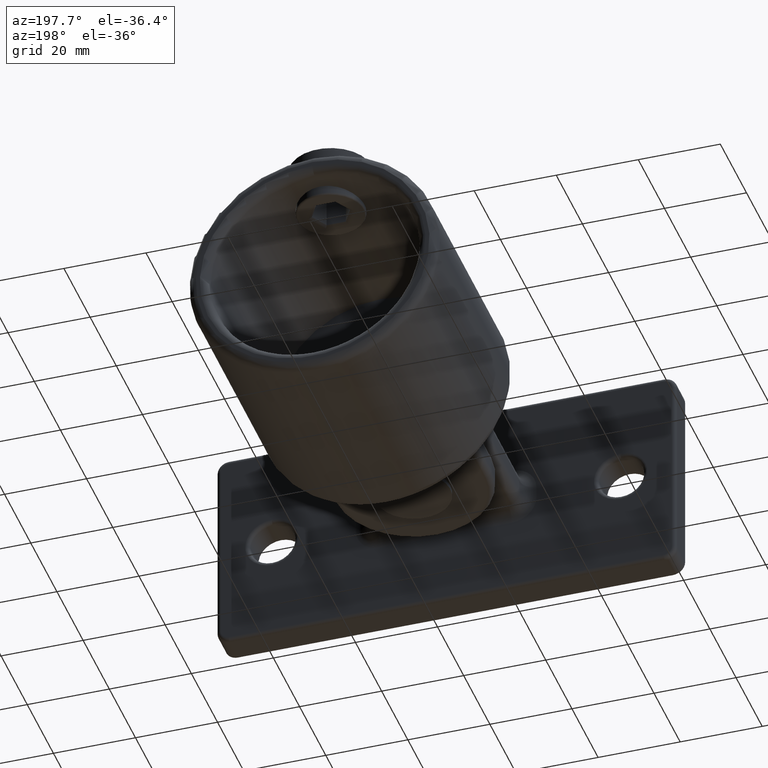
[diagram: clean part render]
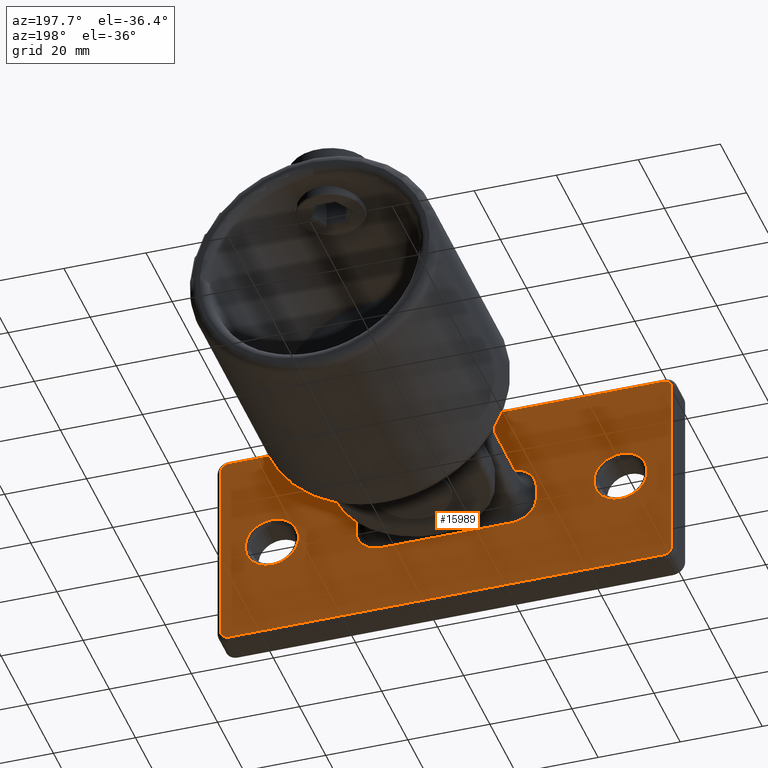
[diagram: same view with one face highlighted and labeled with its STEP entity id]
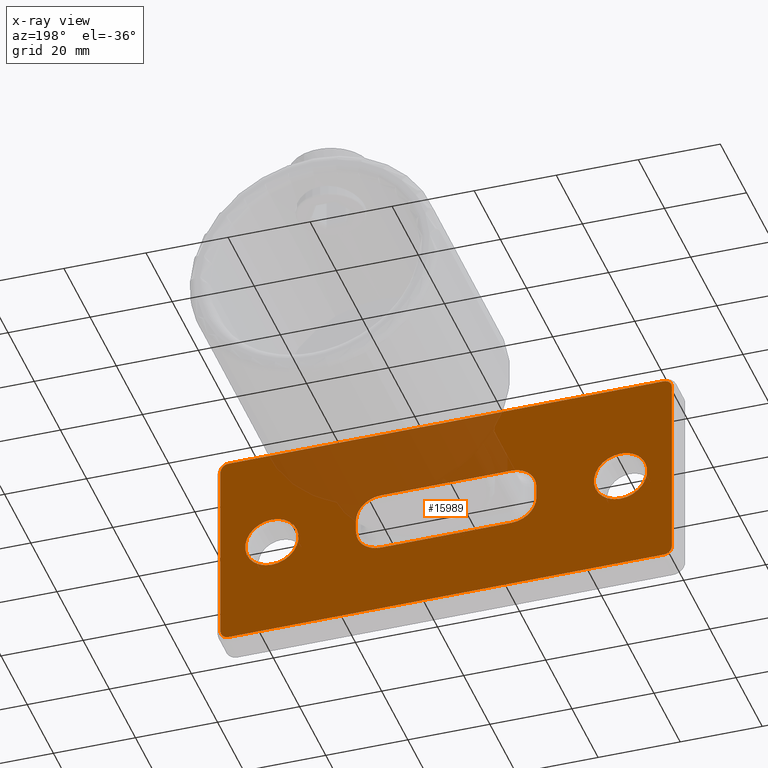
[diagram: x-ray of the same camera — body ghosted, the highlighted face saturated]
A machine part, auxiliary view. The second image highlights one B-rep face of the part: STEP entity #15989.
The next image is the same camera in x-ray: the body ghosted, the highlighted face saturated — about 20% of this face is hidden behind the body in this view.
In plain terms, the highlighted planar face has unit normal (0, 1, 0).
Its self-contained STEP definition (entity closure, byte-faithful):
#181 = AXIS2_PLACEMENT_3D ( 'NONE', #3776, #1078, #13144 ) ;
#395 = DIRECTION ( 'NONE',  ( 0.000000000000000000, 1.000000000000000000, 0.000000000000000000 ) ) ;
#505 = EDGE_CURVE ( 'NONE', #6633, #16099, #15886, .T. ) ;
#767 = LINE ( 'NONE', #10516, #3133 ) ;
#837 = EDGE_CURVE ( 'NONE', #8617, #16755, #767, .T. ) ;
#860 = ORIENTED_EDGE ( 'NONE', *, *, #837, .T. ) ;
#1057 = EDGE_CURVE ( 'NONE', #8617, #1469, #2254, .T. ) ;
#1078 = DIRECTION ( 'NONE',  ( 0.000000000000000000, 1.000000000000000000, 0.000000000000000000 ) ) ;
#1279 = EDGE_CURVE ( 'NONE', #4173, #16099, #15458, .T. ) ;
#1305 = VERTEX_POINT ( 'NONE', #15636 ) ;
#1323 = ORIENTED_EDGE ( 'NONE', *, *, #1394, .F. ) ;
#1394 = EDGE_CURVE ( 'NONE', #1305, #16755, #17144, .T. ) ;
#1469 = VERTEX_POINT ( 'NONE', #16293 ) ;
#1521 = VERTEX_POINT ( 'NONE', #1917 ) ;
#1917 = CARTESIAN_POINT ( 'NONE',  ( 55.00000000000000000, 7.000000000000000000, 22.99999999999999645 ) ) ;
#1945 = CARTESIAN_POINT ( 'NONE',  ( 55.00000000000000000, 7.000000000000000000, -23.00000000000000711 ) ) ;
#1994 = AXIS2_PLACEMENT_3D ( 'NONE', #12014, #8205, #7958 ) ;
#2028 = DIRECTION ( 'NONE',  ( 0.000000000000000000, 0.000000000000000000, 1.000000000000000000 ) ) ;
#2081 = AXIS2_PLACEMENT_3D ( 'NONE', #17134, #15670, #17009 ) ;
#2159 = ORIENTED_EDGE ( 'NONE', *, *, #12636, .F. ) ;
#2199 = VECTOR ( 'NONE', #4478, 1000.000000000000000 ) ;
#2254 = CIRCLE ( 'NONE', #4847, 6.000000000000000000 ) ;
#2487 = DIRECTION ( 'NONE',  ( 0.000000000000000000, -0.000000000000000000, 1.000000000000000000 ) ) ;
#2690 = DIRECTION ( 'NONE',  ( 0.000000000000000000, 1.000000000000000000, 0.000000000000000000 ) ) ;
#2820 = EDGE_CURVE ( 'NONE', #1305, #13119, #16284, .T. ) ;
#2843 = VERTEX_POINT ( 'NONE', #7663 ) ;
#3024 = ORIENTED_EDGE ( 'NONE', *, *, #7839, .T. ) ;
#3133 = VECTOR ( 'NONE', #2487, 1000.000000000000000 ) ;
#3591 = DIRECTION ( 'NONE',  ( -1.000000000000000000, 0.000000000000000000, -0.000000000000000000 ) ) ;
#3752 = AXIS2_PLACEMENT_3D ( 'NONE', #10711, #2690, #11023 ) ;
#3776 = CARTESIAN_POINT ( 'NONE',  ( -16.00000000000000000, 7.000000000000000000, -1.499999999999999556 ) ) ;
#3814 = ORIENTED_EDGE ( 'NONE', *, *, #505, .T. ) ;
#3954 = ORIENTED_EDGE ( 'NONE', *, *, #9248, .T. ) ;
#4173 = VERTEX_POINT ( 'NONE', #13181 ) ;
#4177 = VECTOR ( 'NONE', #3591, 1000.000000000000000 ) ;
#4373 = CARTESIAN_POINT ( 'NONE',  ( 0.000000000000000000, 7.000000000000000000, 0.000000000000000000 ) ) ;
#4424 = CARTESIAN_POINT ( 'NONE',  ( -22.00000000000000000, 7.000000000000000000, 0.000000000000000000 ) ) ;
#4466 = AXIS2_PLACEMENT_3D ( 'NONE', #6738, #12277, #16058 ) ;
#4478 = DIRECTION ( 'NONE',  ( -0.000000000000000000, 0.000000000000000000, 1.000000000000000000 ) ) ;
#4578 = AXIS2_PLACEMENT_3D ( 'NONE', #7341, #16653, #9991 ) ;
#4610 = AXIS2_PLACEMENT_3D ( 'NONE', #10069, #14105, #2028 ) ;
#4847 = AXIS2_PLACEMENT_3D ( 'NONE', #7109, #395, #8562 ) ;
#5215 = ORIENTED_EDGE ( 'NONE', *, *, #8980, .T. ) ;
#5532 = EDGE_LOOP ( 'NONE', ( #11019, #15695, #11390, #5215, #16575, #8104, #7518, #3024 ) ) ;
#5581 = CARTESIAN_POINT ( 'NONE',  ( 42.50000000000000000, 7.000000000000000000, 0.000000000000000000 ) ) ;
#5730 = EDGE_CURVE ( 'NONE', #9697, #16459, #7469, .T. ) ;
#5778 = CARTESIAN_POINT ( 'NONE',  ( -55.00000000000001421, 7.000000000000000000, 22.99999999999999645 ) ) ;
#5830 = LINE ( 'NONE', #5778, #2199 ) ;
#5834 = CARTESIAN_POINT ( 'NONE',  ( -22.00000000000000000, 7.000000000000000000, -1.499999999999999556 ) ) ;
#5926 = CARTESIAN_POINT ( 'NONE',  ( -55.00000000000001421, 7.000000000000000000, -23.00000000000000711 ) ) ;
#6175 = CIRCLE ( 'NONE', #3752, 1.999999999999998224 ) ;
#6225 = DIRECTION ( 'NONE',  ( 1.000000000000000000, 0.000000000000000000, 0.000000000000000000 ) ) ;
#6332 = CARTESIAN_POINT ( 'NONE',  ( 0.000000000000000000, 7.000000000000000000, -7.500000000000000000 ) ) ;
#6571 = CIRCLE ( 'NONE', #8722, 6.499999999999996447 ) ;
#6633 = VERTEX_POINT ( 'NONE', #8008 ) ;
#6738 = CARTESIAN_POINT ( 'NONE',  ( -53.00000000000001421, 7.000000000000000000, -23.00000000000000711 ) ) ;
#6948 = VERTEX_POINT ( 'NONE', #14492 ) ;
#7109 = CARTESIAN_POINT ( 'NONE',  ( 16.00000000000000000, 7.000000000000000000, -1.499999999999999556 ) ) ;
#7294 = LINE ( 'NONE', #7873, #13115 ) ;
#7341 = CARTESIAN_POINT ( 'NONE',  ( 53.00000000000000000, 7.000000000000000000, -23.00000000000000711 ) ) ;
#7469 = CIRCLE ( 'NONE', #4466, 2.000000000000001776 ) ;
#7472 = VERTEX_POINT ( 'NONE', #11179 ) ;
#7518 = ORIENTED_EDGE ( 'NONE', *, *, #16576, .T. ) ;
#7663 = CARTESIAN_POINT ( 'NONE',  ( 55.00000000000000000, 7.000000000000000000, -23.00000000000000711 ) ) ;
#7699 = VECTOR ( 'NONE', #7729, 1000.000000000000000 ) ;
#7725 = CARTESIAN_POINT ( 'NONE',  ( -53.00000000000001421, 7.000000000000000000, -25.00000000000000355 ) ) ;
#7729 = DIRECTION ( 'NONE',  ( 0.000000000000000000, 0.000000000000000000, -1.000000000000000000 ) ) ;
#7779 = CIRCLE ( 'NONE', #4610, 6.000000000000000000 ) ;
#7839 = EDGE_CURVE ( 'NONE', #2843, #12497, #16779, .T. ) ;
#7873 = CARTESIAN_POINT ( 'NONE',  ( 53.00000000000000000, 7.000000000000000000, 24.99999999999999289 ) ) ;
#7874 = CARTESIAN_POINT ( 'NONE',  ( -55.00000000000001421, 7.000000000000000000, 22.99999999999999645 ) ) ;
#7958 = DIRECTION ( 'NONE',  ( 0.000000000000000000, 0.000000000000000000, 1.000000000000000000 ) ) ;
#8008 = CARTESIAN_POINT ( 'NONE',  ( -22.00000000000000000, 7.000000000000000000, 1.499999999999999556 ) ) ;
#8104 = ORIENTED_EDGE ( 'NONE', *, *, #12363, .T. ) ;
#8146 = DIRECTION ( 'NONE',  ( 0.000000000000000000, 0.000000000000000000, 1.000000000000000000 ) ) ;
#8200 = VECTOR ( 'NONE', #14996, 1000.000000000000000 ) ;
#8205 = DIRECTION ( 'NONE',  ( 0.000000000000000000, 1.000000000000000000, 0.000000000000000000 ) ) ;
#8562 = DIRECTION ( 'NONE',  ( 0.000000000000000000, 0.000000000000000000, 1.000000000000000000 ) ) ;
#8617 = VERTEX_POINT ( 'NONE', #17420 ) ;
#8722 = AXIS2_PLACEMENT_3D ( 'NONE', #5581, #17417, #8146 ) ;
#8980 = EDGE_CURVE ( 'NONE', #12388, #14994, #6175, .T. ) ;
#9106 = AXIS2_PLACEMENT_3D ( 'NONE', #13089, #17112, #10444 ) ;
#9248 = EDGE_CURVE ( 'NONE', #4173, #1469, #12425, .T. ) ;
#9287 = CARTESIAN_POINT ( 'NONE',  ( 53.00000000000000000, 7.000000000000000000, -25.00000000000000355 ) ) ;
#9307 = VECTOR ( 'NONE', #6225, 1000.000000000000000 ) ;
#9589 = FACE_BOUND ( 'NONE', #14692, .T. ) ;
#9697 = VERTEX_POINT ( 'NONE', #7725 ) ;
#9892 = CARTESIAN_POINT ( 'NONE',  ( -16.00000000000000000, 7.000000000000000000, 7.500000000000000000 ) ) ;
#9991 = DIRECTION ( 'NONE',  ( 0.000000000000000000, 0.000000000000000000, 1.000000000000000000 ) ) ;
#10008 = ORIENTED_EDGE ( 'NONE', *, *, #1057, .F. ) ;
#10035 = CARTESIAN_POINT ( 'NONE',  ( -19.00000000000000000, 7.000000000000000000, 7.500000000000000000 ) ) ;
#10069 = CARTESIAN_POINT ( 'NONE',  ( -16.00000000000000000, 7.000000000000000000, 1.499999999999999556 ) ) ;
#10256 = CIRCLE ( 'NONE', #2081, 1.999999999999998224 ) ;
#10310 = AXIS2_PLACEMENT_3D ( 'NONE', #4373, #11177, #15063 ) ;
#10444 = DIRECTION ( 'NONE',  ( 0.000000000000000000, 0.000000000000000000, 1.000000000000000000 ) ) ;
#10516 = CARTESIAN_POINT ( 'NONE',  ( 22.00000000000000000, 7.000000000000000000, 0.000000000000000000 ) ) ;
#10602 = EDGE_CURVE ( 'NONE', #7472, #7472, #6571, .T. ) ;
#10711 = CARTESIAN_POINT ( 'NONE',  ( -53.00000000000001421, 7.000000000000000000, 22.99999999999999645 ) ) ;
#11019 = ORIENTED_EDGE ( 'NONE', *, *, #13253, .T. ) ;
#11023 = DIRECTION ( 'NONE',  ( 0.000000000000000000, 0.000000000000000000, 1.000000000000000000 ) ) ;
#11177 = DIRECTION ( 'NONE',  ( 0.000000000000000000, 1.000000000000000000, 0.000000000000000000 ) ) ;
#11179 = CARTESIAN_POINT ( 'NONE',  ( 42.50000000000000000, 7.000000000000000000, 6.499999999999996447 ) ) ;
#11282 = DIRECTION ( 'NONE',  ( -1.000000000000000000, 0.000000000000000000, 0.000000000000000000 ) ) ;
#11390 = ORIENTED_EDGE ( 'NONE', *, *, #15967, .T. ) ;
#11421 = EDGE_LOOP ( 'NONE', ( #16829 ) ) ;
#11864 = CARTESIAN_POINT ( 'NONE',  ( -53.00000000000001421, 7.000000000000000000, 24.99999999999999289 ) ) ;
#12014 = CARTESIAN_POINT ( 'NONE',  ( 16.00000000000000000, 7.000000000000000000, 1.499999999999999556 ) ) ;
#12069 = CIRCLE ( 'NONE', #9106, 6.499999999999996447 ) ;
#12277 = DIRECTION ( 'NONE',  ( 0.000000000000000000, 1.000000000000000000, 0.000000000000000000 ) ) ;
#12363 = EDGE_CURVE ( 'NONE', #6948, #1521, #10256, .T. ) ;
#12388 = VERTEX_POINT ( 'NONE', #7874 ) ;
#12425 = LINE ( 'NONE', #6332, #9307 ) ;
#12497 = VERTEX_POINT ( 'NONE', #9287 ) ;
#12636 = EDGE_CURVE ( 'NONE', #6633, #13119, #7779, .T. ) ;
#12880 = VERTEX_POINT ( 'NONE', #16504 ) ;
#13089 = CARTESIAN_POINT ( 'NONE',  ( -42.50000000000000000, 7.000000000000000000, 0.000000000000000000 ) ) ;
#13115 = VECTOR ( 'NONE', #13288, 1000.000000000000000 ) ;
#13119 = VERTEX_POINT ( 'NONE', #9892 ) ;
#13144 = DIRECTION ( 'NONE',  ( 0.000000000000000000, 0.000000000000000000, 1.000000000000000000 ) ) ;
#13151 = CARTESIAN_POINT ( 'NONE',  ( 22.00000000000000000, 7.000000000000000000, 1.499999999999999556 ) ) ;
#13181 = CARTESIAN_POINT ( 'NONE',  ( -16.00000000000000000, 7.000000000000000000, -7.500000000000000000 ) ) ;
#13253 = EDGE_CURVE ( 'NONE', #12497, #9697, #16332, .T. ) ;
#13288 = DIRECTION ( 'NONE',  ( 1.000000000000000000, -0.000000000000000000, 0.000000000000000000 ) ) ;
#13556 = LINE ( 'NONE', #1945, #7699 ) ;
#14105 = DIRECTION ( 'NONE',  ( 0.000000000000000000, 1.000000000000000000, 0.000000000000000000 ) ) ;
#14466 = ORIENTED_EDGE ( 'NONE', *, *, #1279, .F. ) ;
#14492 = CARTESIAN_POINT ( 'NONE',  ( 53.00000000000000000, 7.000000000000000000, 24.99999999999999289 ) ) ;
#14576 = FACE_BOUND ( 'NONE', #11421, .T. ) ;
#14692 = EDGE_LOOP ( 'NONE', ( #14466, #3954, #10008, #860, #1323, #14836, #2159, #3814 ) ) ;
#14836 = ORIENTED_EDGE ( 'NONE', *, *, #2820, .T. ) ;
#14994 = VERTEX_POINT ( 'NONE', #11864 ) ;
#14996 = DIRECTION ( 'NONE',  ( 0.000000000000000000, 0.000000000000000000, -1.000000000000000000 ) ) ;
#15063 = DIRECTION ( 'NONE',  ( 0.000000000000000000, -0.000000000000000000, 1.000000000000000000 ) ) ;
#15091 = VECTOR ( 'NONE', #11282, 1000.000000000000000 ) ;
#15174 = PLANE ( 'NONE',  #10310 ) ;
#15423 = FACE_BOUND ( 'NONE', #15485, .T. ) ;
#15458 = CIRCLE ( 'NONE', #181, 6.000000000000000000 ) ;
#15485 = EDGE_LOOP ( 'NONE', ( #17172 ) ) ;
#15636 = CARTESIAN_POINT ( 'NONE',  ( 16.00000000000000000, 7.000000000000000000, 7.500000000000000000 ) ) ;
#15670 = DIRECTION ( 'NONE',  ( 0.000000000000000000, 1.000000000000000000, 0.000000000000000000 ) ) ;
#15695 = ORIENTED_EDGE ( 'NONE', *, *, #5730, .T. ) ;
#15886 = LINE ( 'NONE', #4424, #8200 ) ;
#15967 = EDGE_CURVE ( 'NONE', #16459, #12388, #5830, .T. ) ;
#15989 = ADVANCED_FACE ( 'NONE', ( #14576, #15423, #16031, #9589 ), #15174, .T. ) ;
#16031 = FACE_OUTER_BOUND ( 'NONE', #5532, .T. ) ;
#16058 = DIRECTION ( 'NONE',  ( 0.000000000000000000, 0.000000000000000000, 1.000000000000000000 ) ) ;
#16099 = VERTEX_POINT ( 'NONE', #5834 ) ;
#16284 = LINE ( 'NONE', #10035, #4177 ) ;
#16287 = EDGE_CURVE ( 'NONE', #14994, #6948, #7294, .T. ) ;
#16293 = CARTESIAN_POINT ( 'NONE',  ( 16.00000000000000000, 7.000000000000000000, -7.500000000000000000 ) ) ;
#16332 = LINE ( 'NONE', #16883, #15091 ) ;
#16459 = VERTEX_POINT ( 'NONE', #5926 ) ;
#16504 = CARTESIAN_POINT ( 'NONE',  ( -42.50000000000000000, 7.000000000000000000, 6.499999999999996447 ) ) ;
#16575 = ORIENTED_EDGE ( 'NONE', *, *, #16287, .T. ) ;
#16576 = EDGE_CURVE ( 'NONE', #1521, #2843, #13556, .T. ) ;
#16653 = DIRECTION ( 'NONE',  ( 0.000000000000000000, 1.000000000000000000, 0.000000000000000000 ) ) ;
#16674 = EDGE_CURVE ( 'NONE', #12880, #12880, #12069, .T. ) ;
#16755 = VERTEX_POINT ( 'NONE', #13151 ) ;
#16779 = CIRCLE ( 'NONE', #4578, 2.000000000000001776 ) ;
#16829 = ORIENTED_EDGE ( 'NONE', *, *, #16674, .T. ) ;
#16883 = CARTESIAN_POINT ( 'NONE',  ( -53.00000000000001421, 7.000000000000000000, -25.00000000000000355 ) ) ;
#17009 = DIRECTION ( 'NONE',  ( 0.000000000000000000, 0.000000000000000000, 1.000000000000000000 ) ) ;
#17112 = DIRECTION ( 'NONE',  ( -0.000000000000000000, -1.000000000000000000, -0.000000000000000000 ) ) ;
#17134 = CARTESIAN_POINT ( 'NONE',  ( 53.00000000000000000, 7.000000000000000000, 22.99999999999999645 ) ) ;
#17144 = CIRCLE ( 'NONE', #1994, 6.000000000000000000 ) ;
#17172 = ORIENTED_EDGE ( 'NONE', *, *, #10602, .T. ) ;
#17417 = DIRECTION ( 'NONE',  ( -0.000000000000000000, -1.000000000000000000, -0.000000000000000000 ) ) ;
#17420 = CARTESIAN_POINT ( 'NONE',  ( 22.00000000000000000, 7.000000000000000000, -1.499999999999999556 ) ) ;